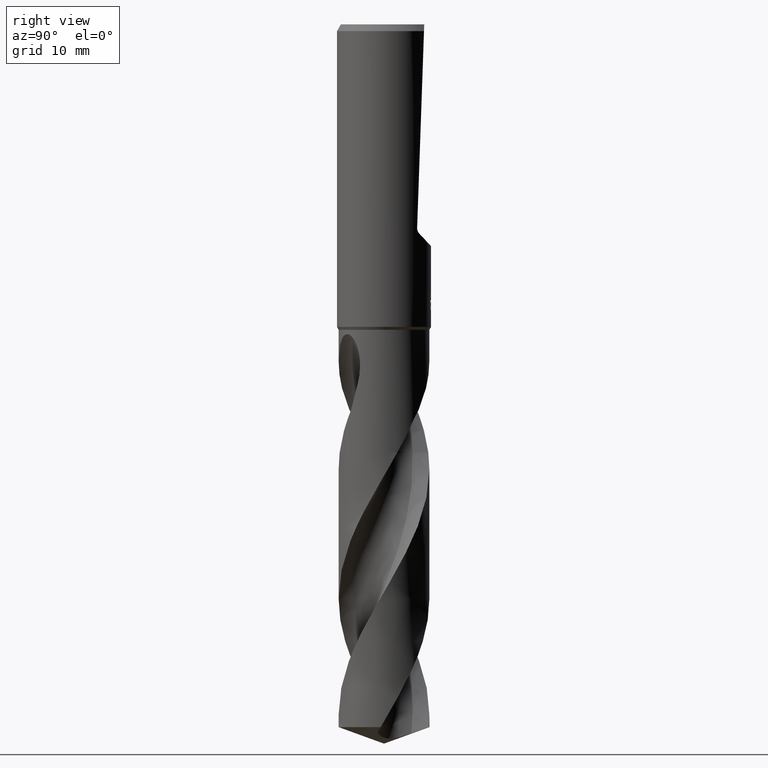
[diagram: clean part render]
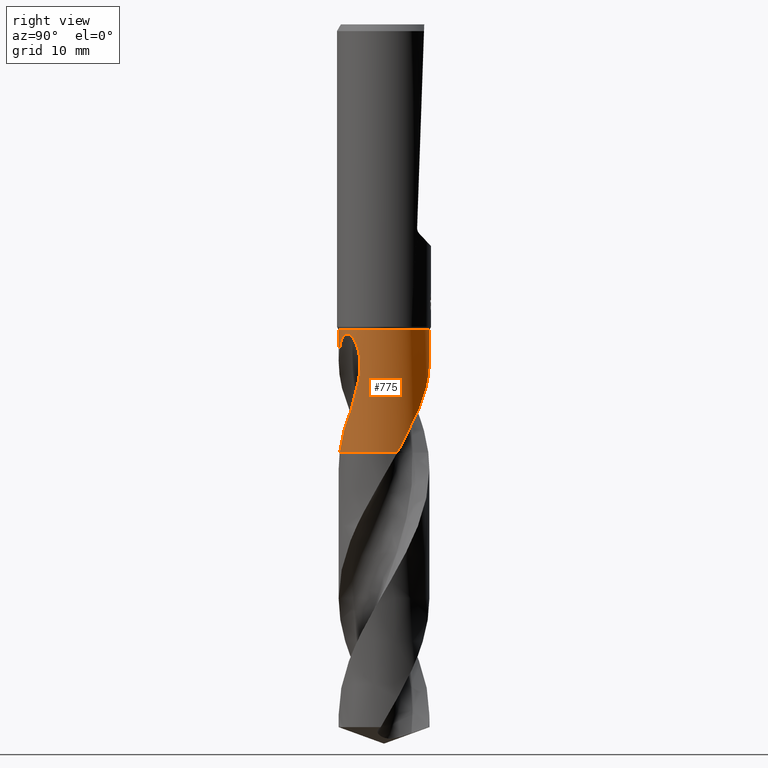
[diagram: same view with one face highlighted and labeled with its STEP entity id]
A machine part, right view. The second image highlights one B-rep face of the part: STEP entity #775.
In plain terms, the highlighted cylindrical surface (partial cylindrical patch) has radius 6.75 mm, axis along (-0, -0, 1).
Its self-contained STEP definition (entity closure, byte-faithful):
#319=VERTEX_POINT('',#883);
#379=EDGE_CURVE('',#719,#319,#953,.T.);
#435=VERTEX_POINT('',#1014);
#461=VERTEX_POINT('',#1041);
#477=EDGE_CURVE('',#575,#435,#1060,.T.);
#523=EDGE_CURVE('',#813,#567,#1109,.T.);
#567=VERTEX_POINT('',#1156);
#575=VERTEX_POINT('',#1165);
#611=EDGE_CURVE('',#741,#813,#1204,.T.);
#665=VERTEX_POINT('',#1266);
#677=EDGE_CURVE('',#567,#435,#1279,.T.);
#687=EDGE_CURVE('',#575,#719,#1289,.T.);
#699=EDGE_CURVE('',#665,#319,#1302,.T.);
#719=VERTEX_POINT('',#1322);
#741=VERTEX_POINT('',#1344);
#775=ADVANCED_FACE('',(#1381),#1382,.T.);
#783=EDGE_CURVE('',#665,#461,#1391,.T.);
#813=VERTEX_POINT('',#1424);
#815=EDGE_CURVE('',#741,#461,#1426,.T.);
#883=CARTESIAN_POINT('',(-1.99925883817955E-012,6.75,-50.0359103202736));
#953=B_SPLINE_CURVE_WITH_KNOTS('',3,(#2416,#2417,#2418,#2419,#2420,#2421,#2422,#2423,#2424,#2425,#2426,#2427,#2428,#2429,#2430,#2431,#2432,#2433,#2434,#2435,#2436,#2437,#2438,#2439,#2440,#2441,#2442,#2443,#2444,#2445),.UNSPECIFIED.,.F.,.F.,(4,2,2,2,2,2,2,2,2,2,2,2,2,2,4),(0.0,3.30711694255791,5.11288139214841,6.74844930904928,8.64858516577941,10.9310837640851,12.9093639976813,13.805853668554,14.4610782186979,15.0811122328122,15.8676623309045,17.0184170152245,18.6543501100408,19.724889145405,20.8499529098982),.UNSPECIFIED.);
#1014=CARTESIAN_POINT('',(1.42311822840923,-6.59827511611704,-63.7));
#1041=CARTESIAN_POINT('',(8.26609288830105E-016,-6.75,-45.4330127018922));
#1060=CIRCLE('',#4005,6.75);
#1109=B_SPLINE_CURVE_WITH_KNOTS('',3,(#4860,#4861,#4862,#4863),.UNSPECIFIED.,.F.,.F.,(4,4),(0.0,3.87935932872194),.UNSPECIFIED.);
#1156=CARTESIAN_POINT('',(4.69177206265612,-4.85281103197719,-57.211));
#1165=CARTESIAN_POINT('',(6.45470799198203,1.97465053572609,-63.7));
#1204=B_SPLINE_CURVE_WITH_KNOTS('',3,(#5107,#5108,#5109,#5110,#5111,#5112,#5113,#5114,#5115,#5116,#5117,#5118,#5119,#5120,#5121,#5122,#5123,#5124,#5125,#5126,#5127,#5128,#5129,#5130,#5131,#5132,#5133,#5134,#5135,#5136),.UNSPECIFIED.,.F.,.F.,(4,2,2,2,2,2,2,2,2,2,2,2,2,2,4),(0.0,3.30711694255793,5.11288139214855,6.74844930904952,8.64858516577958,10.9310837640851,12.9093639976809,13.8058536685534,14.4610782186975,15.0811122328119,15.8676623309043,17.0184170152245,18.6543501100411,19.7248891454053,20.8499529098984),.UNSPECIFIED.);
#1266=CARTESIAN_POINT('',(0.0,6.75,-45.4330127018922));
#1279=B_SPLINE_CURVE_WITH_KNOTS('',3,(#6254,#6255,#6256,#6257,#6258,#6259,#6260,#6261,#6262,#6263,#6264,#6265),.UNSPECIFIED.,.F.,.F.,(4,2,2,2,2,4),(0.0,1.62522122751149,3.05796677497325,5.09944263476552,5.3512820204745,7.12337451677666),.UNSPECIFIED.);
#1289=B_SPLINE_CURVE_WITH_KNOTS('',3,(#6334,#6335,#6336,#6337,#6338,#6339,#6340,#6341,#6342,#6343,#6344,#6345,#6346,#6347),.UNSPECIFIED.,.F.,.F.,(4,2,2,2,2,2,4),(0.0,1.87413187312247,2.57515260526874,3.74139489759282,4.61625192919154,5.15238319794775,5.55837587212359),.UNSPECIFIED.);
#1302=LINE('',#6830,#6831);
#1322=CARTESIAN_POINT('',(4.30119422899642,5.20213688828427,-57.211));
#1344=CARTESIAN_POINT('',(1.99837065975985E-012,-6.75,-50.0359103202736));
#1381=FACE_OUTER_BOUND('',#7084,.T.);
#1382=CYLINDRICAL_SURFACE('',#7085,6.75);
#1391=CIRCLE('',#7096,6.75);
#1424=CARTESIAN_POINT('',(5.49208460232802,-3.92422052398581,-53.5148334607052));
#1426=LINE('',#7215,#7216);
#2416=CARTESIAN_POINT('',(4.30119422899642,5.20213688828426,-57.211));
#2417=CARTESIAN_POINT('',(3.85594019494424,5.5702786967045,-56.2721468841522));
#2418=CARTESIAN_POINT('',(3.3439991660528,5.89753114670489,-55.3968325355212));
#2419=CARTESIAN_POINT('',(2.45132674558991,6.29864778142176,-53.9345603618728));
#2420=CARTESIAN_POINT('',(2.13010110389707,6.41403394279637,-53.4200836110438));
#2421=CARTESIAN_POINT('',(1.50824889698882,6.58648250312382,-52.4241902775121));
#2422=CARTESIAN_POINT('',(1.21039886159486,6.6474081642939,-51.9474156407544));
#2423=CARTESIAN_POINT('',(0.565679060907763,6.73533885830586,-50.9198400113771));
#2424=CARTESIAN_POINT('',(0.213423925193137,6.75598251427152,-50.3609956507312));
#2425=CARTESIAN_POINT('',(-0.568844802216419,6.73952756486597,-49.165442891546));
#2426=CARTESIAN_POINT('',(-1.0326512255421,6.68863328960517,-48.4851602412546));
#2427=CARTESIAN_POINT('',(-1.92704185575119,6.483098192083,-47.3634212429786));
#2428=CARTESIAN_POINT('',(-2.42187222227984,6.3265065187242,-46.8160567441883));
#2429=CARTESIAN_POINT('',(-3.17079333362675,5.96454991240436,-46.3035047021848));
#2430=CARTESIAN_POINT('',(-3.41869135992032,5.82790286792513,-46.1768325021632));
#2431=CARTESIAN_POINT('',(-3.85306565805279,5.54654327213997,-46.0795256651129));
#2432=CARTESIAN_POINT('',(-4.03122693397669,5.41841001573815,-46.077708787617));
#2433=CARTESIAN_POINT('',(-4.36306192046167,5.15448228097145,-46.1628728585223));
#2434=CARTESIAN_POINT('',(-4.50818997991413,5.02701046683521,-46.2427216591244));
#2435=CARTESIAN_POINT('',(-4.80352396579004,4.7476659669222,-46.4925593016008));
#2436=CARTESIAN_POINT('',(-4.9401588298003,4.60290265368629,-46.6770194183306));
#2437=CARTESIAN_POINT('',(-5.22003120372185,4.28680140201446,-47.1821284554881));
#2438=CARTESIAN_POINT('',(-5.3538046234332,4.11466168711375,-47.5567700739442));
#2439=CARTESIAN_POINT('',(-5.60536057152216,3.76900739003865,-48.604975694939));
#2440=CARTESIAN_POINT('',(-5.69630384623376,3.62177536514801,-49.3514937311097));
#2441=CARTESIAN_POINT('',(-5.74131690308419,3.54977580957866,-50.7331135657238));
#2442=CARTESIAN_POINT('',(-5.73073306366152,3.56732477937246,-51.2833420105769));
#2443=CARTESIAN_POINT('',(-5.6559780775407,3.68476604534495,-52.4000309037715));
#2444=CARTESIAN_POINT('',(-5.58923073919069,3.78826108970375,-52.9622883147786));
#2445=CARTESIAN_POINT('',(-5.49208460232802,3.92422052398581,-53.5148334607052));
#4005=AXIS2_PLACEMENT_3D('',#7927,#7928,#7929);
#4860=CARTESIAN_POINT('',(5.49208460238064,-3.92422052391217,-53.5148334607341));
#4861=CARTESIAN_POINT('',(5.27447016596737,-4.2287795791942,-54.7525921183952));
#4862=CARTESIAN_POINT('',(5.01218660453099,-4.54302934335768,-55.9977166266893));
#4863=CARTESIAN_POINT('',(4.69177206265611,-4.8528110319772,-57.211));
#5107=CARTESIAN_POINT('',(-4.30119422899642,-5.20213688828427,-57.211));
#5108=CARTESIAN_POINT('',(-3.85594019494424,-5.57027869670451,-56.2721468841522));
#5109=CARTESIAN_POINT('',(-3.34399916605278,-5.89753114670489,-55.3968325355212));
#5110=CARTESIAN_POINT('',(-2.4513267455899,-6.29864778142177,-53.9345603618728));
#5111=CARTESIAN_POINT('',(-2.13010110389704,-6.41403394279637,-53.4200836110437));
#5112=CARTESIAN_POINT('',(-1.50824889698885,-6.58648250312381,-52.4241902775122));
#5113=CARTESIAN_POINT('',(-1.21039886159492,-6.64740816429389,-51.9474156407545));
#5114=CARTESIAN_POINT('',(-0.565679060907725,-6.73533885830587,-50.9198400113771));
#5115=CARTESIAN_POINT('',(-0.213423925193123,-6.75598251427151,-50.3609956507312));
#5116=CARTESIAN_POINT('',(0.568844802216366,-6.73952756486597,-49.1654428915461));
#5117=CARTESIAN_POINT('',(1.03265122554209,-6.68863328960518,-48.4851602412546));
#5118=CARTESIAN_POINT('',(1.92704185575116,-6.48309819208302,-47.3634212429786));
#5119=CARTESIAN_POINT('',(2.42187222227983,-6.32650651872421,-46.8160567441884));
#5120=CARTESIAN_POINT('',(3.17079333362679,-5.96454991240435,-46.3035047021848));
#5121=CARTESIAN_POINT('',(3.41869135992033,-5.82790286792512,-46.1768325021632));
#5122=CARTESIAN_POINT('',(3.85306565805281,-5.54654327213995,-46.0795256651129));
#5123=CARTESIAN_POINT('',(4.0312269339767,-5.41841001573815,-46.0777087876171));
#5124=CARTESIAN_POINT('',(4.36306192046166,-5.15448228097146,-46.1628728585223));
#5125=CARTESIAN_POINT('',(4.50818997991411,-5.02701046683522,-46.2427216591244));
#5126=CARTESIAN_POINT('',(4.80352396579003,-4.7476659669222,-46.4925593016008));
#5127=CARTESIAN_POINT('',(4.94015882980029,-4.6029026536863,-46.6770194183306));
#5128=CARTESIAN_POINT('',(5.2200312037219,-4.28680140201441,-47.1821284554882));
#5129=CARTESIAN_POINT('',(5.35380462343323,-4.11466168711371,-47.5567700739443));
#5130=CARTESIAN_POINT('',(5.60536057152211,-3.76900739003873,-48.6049756949387));
#5131=CARTESIAN_POINT('',(5.69630384623375,-3.62177536514803,-49.3514937311095));
#5132=CARTESIAN_POINT('',(5.7413169030842,-3.54977580957866,-50.7331135657238));
#5133=CARTESIAN_POINT('',(5.73073306366152,-3.56732477937246,-51.2833420105769));
#5134=CARTESIAN_POINT('',(5.6559780775407,-3.68476604534495,-52.4000309037715));
#5135=CARTESIAN_POINT('',(5.58923073919068,-3.78826108970377,-52.9622883147786));
#5136=CARTESIAN_POINT('',(5.49208460232802,-3.92422052398581,-53.5148334607052));
#6254=CARTESIAN_POINT('',(4.69177206265612,-4.85281103197719,-57.211));
#6255=CARTESIAN_POINT('',(4.50621216970106,-5.0322131797178,-57.6873035444344));
#6256=CARTESIAN_POINT('',(4.30716503652426,-5.20487793670148,-58.1604821075072));
#6257=CARTESIAN_POINT('',(3.88351768176298,-5.52656360756226,-59.0684035770629));
#6258=CARTESIAN_POINT('',(3.68201857694407,-5.66319060802463,-59.4684598146893));
#6259=CARTESIAN_POINT('',(3.14518331989894,-5.98375390176736,-60.5339017066372));
#6260=CARTESIAN_POINT('',(2.81516076204486,-6.14599737288494,-61.1744172512117));
#6261=CARTESIAN_POINT('',(2.42979112063358,-6.29767286007255,-61.889386452403));
#6262=CARTESIAN_POINT('',(2.3872730365494,-6.31391306827517,-61.9678696214048));
#6263=CARTESIAN_POINT('',(2.04433126323503,-6.44094262615937,-62.5982917459728));
#6264=CARTESIAN_POINT('',(1.7364302745297,-6.53069986710606,-63.1479517968304));
#6265=CARTESIAN_POINT('',(1.42311822840921,-6.598275116117,-63.7));
#6334=CARTESIAN_POINT('',(6.45470799198202,1.9746505357261,-63.7));
#6335=CARTESIAN_POINT('',(6.36319358137654,2.27379146564234,-63.1592568253724));
#6336=CARTESIAN_POINT('',(6.24959950495738,2.57072097691743,-62.6137031502789));
#6337=CARTESIAN_POINT('',(6.06206428930269,2.97125759489748,-61.8698214447193));
#6338=CARTESIAN_POINT('',(6.00954609552635,3.07624800151694,-61.6739962926945));
#6339=CARTESIAN_POINT('',(5.85330321252705,3.36809904821992,-61.1110988251691));
#6340=CARTESIAN_POINT('',(5.74958149451517,3.54171589410485,-60.7596470440772));
#6341=CARTESIAN_POINT('',(5.55993603917944,3.8303424281369,-60.1349793882431));
#6342=CARTESIAN_POINT('',(5.48057701149181,3.94263261811648,-59.877972770944));
#6343=CARTESIAN_POINT('',(5.34863172353473,4.11844813442948,-59.4476243660091));
#6344=CARTESIAN_POINT('',(5.21331393277025,4.30342659527834,-58.9873230358074));
#6345=CARTESIAN_POINT('',(4.77476478705605,4.7793193829032,-57.9984233327966));
#6346=CARTESIAN_POINT('',(4.55607380802848,4.99139914762798,-57.5975133832612));
#6347=CARTESIAN_POINT('',(4.30119422899642,5.20213688828427,-57.211));
#6830=CARTESIAN_POINT('',(-8.26609288830105E-016,6.75,-54.5665063509461));
#6831=VECTOR('',#8131,1.0);
#7084=EDGE_LOOP('',(#8175,#8176,#8177,#8178,#8179,#8180,#8181,#8182,#8183));
#7085=AXIS2_PLACEMENT_3D('',#8184,#8185,#8186);
#7096=AXIS2_PLACEMENT_3D('',#8195,#8196,#8197);
#7215=CARTESIAN_POINT('',(8.26609288830105E-016,-6.75,-54.5665063509461));
#7216=VECTOR('',#8241,1.0);
#7927=CARTESIAN_POINT('',(0.0,0.0,-63.7));
#7928=DIRECTION('',(0.0,0.0,-1.0));
#7929=DIRECTION('',(0.0,1.0,0.0));
#8131=DIRECTION('',(0.0,0.0,-1.0));
#8175=ORIENTED_EDGE('',*,*,#699,.F.);
#8176=ORIENTED_EDGE('',*,*,#783,.T.);
#8177=ORIENTED_EDGE('',*,*,#815,.F.);
#8178=ORIENTED_EDGE('',*,*,#611,.T.);
#8179=ORIENTED_EDGE('',*,*,#523,.T.);
#8180=ORIENTED_EDGE('',*,*,#677,.T.);
#8181=ORIENTED_EDGE('',*,*,#477,.F.);
#8182=ORIENTED_EDGE('',*,*,#687,.T.);
#8183=ORIENTED_EDGE('',*,*,#379,.T.);
#8184=CARTESIAN_POINT('',(0.0,0.0,-54.5665063509461));
#8185=DIRECTION('',(-0.0,-0.0,1.0));
#8186=DIRECTION('',(0.0,1.0,0.0));
#8195=CARTESIAN_POINT('',(0.0,0.0,-45.4330127018922));
#8196=DIRECTION('',(0.0,0.0,-1.0));
#8197=DIRECTION('',(0.0,1.0,0.0));
#8241=DIRECTION('',(-0.0,-0.0,1.0));